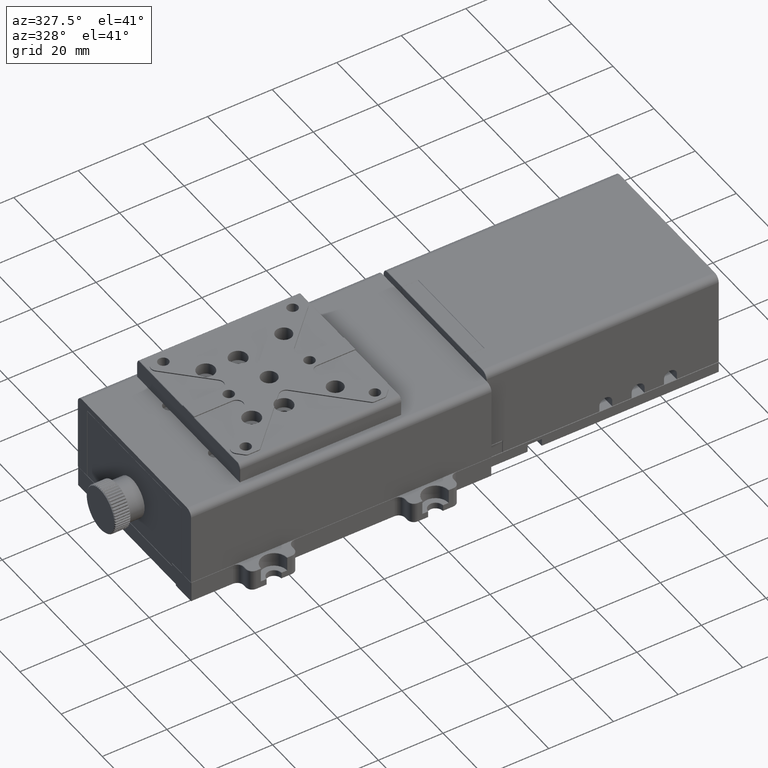
[diagram: clean part render]
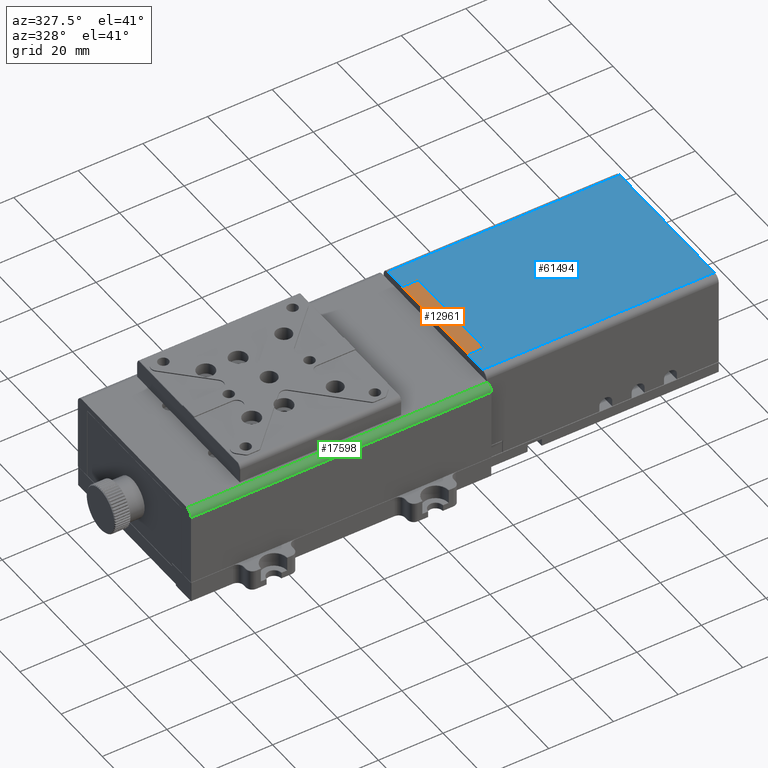
[diagram: same view with three faces highlighted in distinct colors, each labeled with its STEP entity id]
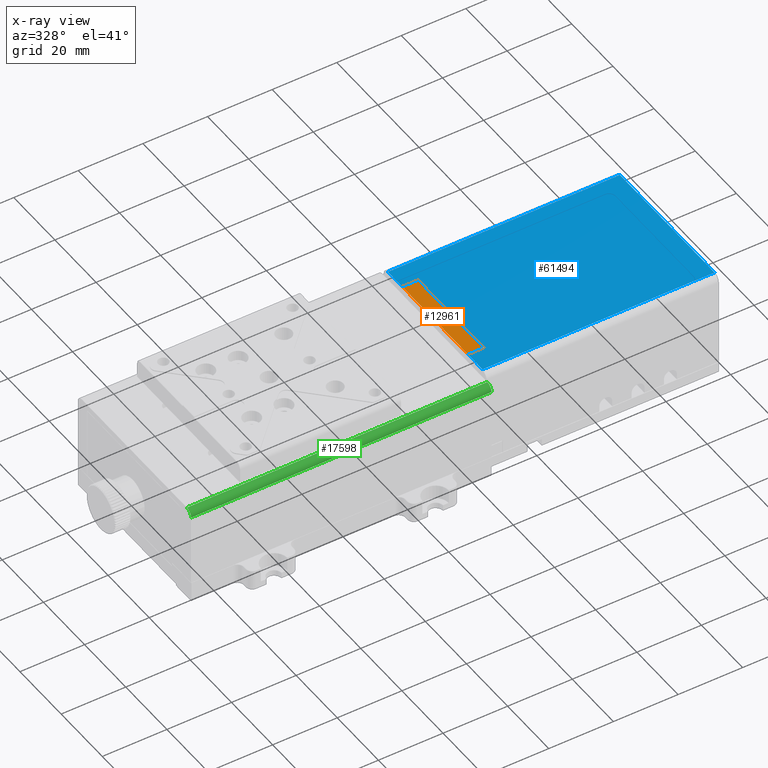
[diagram: x-ray of the same camera — body ghosted, the three highlighted faces saturated]
A machine part, auxiliary view with three faces highlighted in distinct colors.
The next image is the same camera in x-ray (body ghosted, the three faces saturated) — at least one of them is partly hidden behind the body in this view.
Their STEP definitions:

[orange] entity #12961 — the highlighted planar face has unit normal (-0, 0, 1).
#994 = ORIENTED_EDGE ( 'NONE', *, *, #19464, .T. ) ;
#7505 = VERTEX_POINT ( 'NONE', #33692 ) ;
#10291 = CARTESIAN_POINT ( 'NONE',  ( 3.989887640449450323, 40.15842696629215425, 28.50000000000000000 ) ) ;
#12444 = ORIENTED_EDGE ( 'NONE', *, *, #71699, .T. ) ;
#12779 = DIRECTION ( 'NONE',  ( -1.000000000000000000, -5.473822126268819114E-48, -9.413312474910370170E-33 ) ) ;
#12961 = ADVANCED_FACE ( 'NONE', ( #64338 ), #45006, .T. ) ;
#13751 = VECTOR ( 'NONE', #36206, 1000.000000000000000 ) ;
#15356 = VERTEX_POINT ( 'NONE', #10291 ) ;
#15965 = DIRECTION ( 'NONE',  ( 0.000000000000000000, -1.000000000000000000, 2.465190328815659976E-32 ) ) ;
#16878 = VERTEX_POINT ( 'NONE', #41882 ) ;
#19464 = EDGE_CURVE ( 'NONE', #16878, #7505, #57938, .T. ) ;
#27052 = CARTESIAN_POINT ( 'NONE',  ( 3.889887640449449790, 40.15842696629215425, 28.50000000000000000 ) ) ;
#27366 = VECTOR ( 'NONE', #12779, 1000.000000000000000 ) ;
#31326 = EDGE_CURVE ( 'NONE', #15356, #65950, #73564, .T. ) ;
#32393 = DIRECTION ( 'NONE',  ( 0.000000000000000000, -1.000000000000000000, 2.465190328815659976E-32 ) ) ;
#33692 = CARTESIAN_POINT ( 'NONE',  ( 8.789887640449460804, 40.15842696629215425, 28.50000000000000000 ) ) ;
#34099 = ORIENTED_EDGE ( 'NONE', *, *, #31326, .T. ) ;
#35373 = CARTESIAN_POINT ( 'NONE',  ( 3.889887640449449790, 8.358426966292119786, 28.50000000000000000 ) ) ;
#36206 = DIRECTION ( 'NONE',  ( 1.000000000000000000, 5.473822126268819114E-48, 9.413312474910370170E-33 ) ) ;
#38667 = AXIS2_PLACEMENT_3D ( 'NONE', #51730, #77801, #32393 ) ;
#41609 = CARTESIAN_POINT ( 'NONE',  ( 3.989887640449450323, 8.258426966292120142, 28.50000000000000000 ) ) ;
#41882 = CARTESIAN_POINT ( 'NONE',  ( 8.789887640449460804, 8.358426966292119786, 28.50000000000000000 ) ) ;
#45006 = PLANE ( 'NONE',  #38667 ) ;
#48015 = LINE ( 'NONE', #35373, #13751 ) ;
#48577 = EDGE_LOOP ( 'NONE', ( #34099, #66727, #994, #12444 ) ) ;
#49047 = VECTOR ( 'NONE', #15965, 1000.000000000000000 ) ;
#51633 = DIRECTION ( 'NONE',  ( 0.000000000000000000, 1.000000000000000000, -2.465190328815659976E-32 ) ) ;
#51730 = CARTESIAN_POINT ( 'NONE',  ( 3.889887640449449790, 38.25842696629215567, 28.50000000000000000 ) ) ;
#52677 = LINE ( 'NONE', #27052, #27366 ) ;
#55807 = EDGE_CURVE ( 'NONE', #65950, #16878, #48015, .T. ) ;
#57938 = LINE ( 'NONE', #70561, #81395 ) ;
#63239 = CARTESIAN_POINT ( 'NONE',  ( 3.989887640449450323, 8.358426966292119786, 28.50000000000000000 ) ) ;
#64338 = FACE_OUTER_BOUND ( 'NONE', #48577, .T. ) ;
#65950 = VERTEX_POINT ( 'NONE', #63239 ) ;
#66727 = ORIENTED_EDGE ( 'NONE', *, *, #55807, .T. ) ;
#70561 = CARTESIAN_POINT ( 'NONE',  ( 8.789887640449460804, 38.25842696629215567, 28.50000000000000000 ) ) ;
#71699 = EDGE_CURVE ( 'NONE', #7505, #15356, #52677, .T. ) ;
#73564 = LINE ( 'NONE', #41609, #49047 ) ;
#77801 = DIRECTION ( 'NONE',  ( -9.413312474910370170E-33, 2.465190328815659976E-32, 1.000000000000000000 ) ) ;
#81395 = VECTOR ( 'NONE', #51633, 1000.000000000000000 ) ;

[blue] entity #61494 — the highlighted planar face has unit normal (0, 0, -1).
#214 = CARTESIAN_POINT ( 'NONE',  ( 8.989887640449429895, 8.158426966292129379, 28.50000000000000000 ) ) ;
#678 = VECTOR ( 'NONE', #50015, 1000.000000000000000 ) ;
#937 = ORIENTED_EDGE ( 'NONE', *, *, #21728, .T. ) ;
#943 = FACE_OUTER_BOUND ( 'NONE', #58930, .T. ) ;
#3912 = VECTOR ( 'NONE', #71323, 1000.000000000000000 ) ;
#4190 = EDGE_CURVE ( 'NONE', #53842, #35211, #37594, .T. ) ;
#4927 = AXIS2_PLACEMENT_3D ( 'NONE', #53886, #33714, #14394 ) ;
#7060 = EDGE_CURVE ( 'NONE', #35211, #82514, #78051, .T. ) ;
#8069 = VERTEX_POINT ( 'NONE', #44457 ) ;
#10343 = CARTESIAN_POINT ( 'NONE',  ( 75.78988764044939330, 1.258426966292122140, 28.50000000000000000 ) ) ;
#14394 = DIRECTION ( 'NONE',  ( 0.000000000000000000, -1.000000000000000000, 0.000000000000000000 ) ) ;
#17256 = ORIENTED_EDGE ( 'NONE', *, *, #33238, .T. ) ;
#17576 = EDGE_CURVE ( 'NONE', #66667, #53842, #64018, .T. ) ;
#18048 = VECTOR ( 'NONE', #61651, 1000.000000000000000 ) ;
#18226 = DIRECTION ( 'NONE',  ( -1.000000000000000000, 1.110223024625155924E-16, 0.000000000000000000 ) ) ;
#19744 = CARTESIAN_POINT ( 'NONE',  ( 3.889887640449429806, 1.258426966292130134, 28.50000000000000000 ) ) ;
#19923 = EDGE_CURVE ( 'NONE', #82514, #63833, #58417, .T. ) ;
#20648 = VERTEX_POINT ( 'NONE', #10343 ) ;
#21728 = EDGE_CURVE ( 'NONE', #42845, #8069, #80967, .T. ) ;
#23751 = EDGE_CURVE ( 'NONE', #8069, #20648, #70186, .T. ) ;
#24247 = DIRECTION ( 'NONE',  ( -1.000000000000000000, 1.110223024625155924E-16, 0.000000000000000000 ) ) ;
#26613 = CARTESIAN_POINT ( 'NONE',  ( 3.889887640449429806, 47.25842696629209172, 28.50000000000000000 ) ) ;
#30359 = ORIENTED_EDGE ( 'NONE', *, *, #53769, .T. ) ;
#32130 = DIRECTION ( 'NONE',  ( -1.224646799147351975E-16, -1.000000000000000000, 0.000000000000000000 ) ) ;
#33021 = ORIENTED_EDGE ( 'NONE', *, *, #7060, .T. ) ;
#33238 = EDGE_CURVE ( 'NONE', #63833, #42845, #56206, .T. ) ;
#33714 = DIRECTION ( 'NONE',  ( 0.000000000000000000, 0.000000000000000000, -1.000000000000000000 ) ) ;
#35211 = VERTEX_POINT ( 'NONE', #39879 ) ;
#36848 = CARTESIAN_POINT ( 'NONE',  ( 3.889887640449429806, 8.158426966292129379, 28.50000000000000000 ) ) ;
#37594 = LINE ( 'NONE', #38825, #62427 ) ;
#38670 = DIRECTION ( 'NONE',  ( 1.355252715606880049E-16, -1.000000000000000000, 0.000000000000000000 ) ) ;
#38825 = CARTESIAN_POINT ( 'NONE',  ( 3.989887640449430783, -0.7415730337078710876, 28.50000000000000000 ) ) ;
#39879 = CARTESIAN_POINT ( 'NONE',  ( 3.989887640449434780, 40.35842696629214998, 28.50000000000000000 ) ) ;
#40042 = PLANE ( 'NONE',  #4927 ) ;
#40840 = CARTESIAN_POINT ( 'NONE',  ( 3.989887640449434780, 8.158426966292129379, 28.50000000000000000 ) ) ;
#42845 = VERTEX_POINT ( 'NONE', #40840 ) ;
#44457 = CARTESIAN_POINT ( 'NONE',  ( 3.989887640449430783, 1.258426966292130134, 28.50000000000000000 ) ) ;
#44513 = CARTESIAN_POINT ( 'NONE',  ( 75.78988764044939330, -0.7415730337078789702, 28.50000000000000000 ) ) ;
#46078 = ORIENTED_EDGE ( 'NONE', *, *, #23751, .T. ) ;
#46294 = CARTESIAN_POINT ( 'NONE',  ( 75.78988764044939330, 47.25842696629209172, 28.50000000000000000 ) ) ;
#50003 = ORIENTED_EDGE ( 'NONE', *, *, #4190, .T. ) ;
#50015 = DIRECTION ( 'NONE',  ( 1.000000000000000000, -1.110223024625155924E-16, 0.000000000000000000 ) ) ;
#52395 = ORIENTED_EDGE ( 'NONE', *, *, #19923, .T. ) ;
#53769 = EDGE_CURVE ( 'NONE', #20648, #66667, #57552, .T. ) ;
#53842 = VERTEX_POINT ( 'NONE', #72235 ) ;
#53886 = CARTESIAN_POINT ( 'NONE',  ( 3.889887640449429806, -0.7415730337078710876, 28.50000000000000000 ) ) ;
#54526 = ORIENTED_EDGE ( 'NONE', *, *, #17576, .T. ) ;
#55221 = VECTOR ( 'NONE', #81537, 1000.000000000000000 ) ;
#56206 = LINE ( 'NONE', #36848, #64049 ) ;
#57552 = LINE ( 'NONE', #44513, #55221 ) ;
#58063 = VECTOR ( 'NONE', #38670, 1000.000000000000000 ) ;
#58417 = LINE ( 'NONE', #58848, #58063 ) ;
#58723 = CARTESIAN_POINT ( 'NONE',  ( 3.889887640449429806, 40.35842696629214998, 28.50000000000000000 ) ) ;
#58848 = CARTESIAN_POINT ( 'NONE',  ( 8.989887640449429895, -0.7415730337078710876, 28.50000000000000000 ) ) ;
#58930 = EDGE_LOOP ( 'NONE', ( #17256, #937, #46078, #30359, #54526, #50003, #33021, #52395 ) ) ;
#61494 = ADVANCED_FACE ( 'NONE', ( #943 ), #40042, .F. ) ;
#61651 = DIRECTION ( 'NONE',  ( -1.224646799147351975E-16, -1.000000000000000000, 0.000000000000000000 ) ) ;
#62427 = VECTOR ( 'NONE', #32130, 1000.000000000000000 ) ;
#63833 = VERTEX_POINT ( 'NONE', #214 ) ;
#64018 = LINE ( 'NONE', #26613, #79958 ) ;
#64049 = VECTOR ( 'NONE', #24247, 1000.000000000000000 ) ;
#66667 = VERTEX_POINT ( 'NONE', #46294 ) ;
#67953 = CARTESIAN_POINT ( 'NONE',  ( 3.989887640449430783, -0.7415730337078710876, 28.50000000000000000 ) ) ;
#70186 = LINE ( 'NONE', #19744, #678 ) ;
#71323 = DIRECTION ( 'NONE',  ( 1.000000000000000000, -1.110223024625155924E-16, 0.000000000000000000 ) ) ;
#72235 = CARTESIAN_POINT ( 'NONE',  ( 3.989887640449434780, 47.25842696629209172, 28.50000000000000000 ) ) ;
#74298 = CARTESIAN_POINT ( 'NONE',  ( 8.989887640449429895, 40.35842696629214998, 28.50000000000000000 ) ) ;
#78051 = LINE ( 'NONE', #58723, #3912 ) ;
#79958 = VECTOR ( 'NONE', #18226, 1000.000000000000000 ) ;
#80967 = LINE ( 'NONE', #67953, #18048 ) ;
#81537 = DIRECTION ( 'NONE',  ( 1.232595164407829988E-32, 1.000000000000000000, 0.000000000000000000 ) ) ;
#82514 = VERTEX_POINT ( 'NONE', #74298 ) ;

[green] entity #17598 — the highlighted cylindrical surface (edge-blend (fillet) strip) has radius 2 mm, axis along (-1, 0, 0).
#2482 = EDGE_CURVE ( 'NONE', #17372, #79344, #32355, .T. ) ;
#3089 = CARTESIAN_POINT ( 'NONE',  ( -89.11011235955059817, -3.241573033707859874, 24.00000000000000000 ) ) ;
#6214 = CARTESIAN_POINT ( 'NONE',  ( -89.11011235955059817, -3.241573033707859874, 24.00000000000000000 ) ) ;
#6493 = CIRCLE ( 'NONE', #28011, 2.000000000000001776 ) ;
#8221 = DIRECTION ( 'NONE',  ( 1.000000000000000000, 0.000000000000000000, 0.000000000000000000 ) ) ;
#11937 = VERTEX_POINT ( 'NONE', #30350 ) ;
#13778 = VECTOR ( 'NONE', #63374, 1000.000000000000000 ) ;
#16610 = CARTESIAN_POINT ( 'NONE',  ( -89.11011235955059817, -1.241573033707860096, 26.00000000000000000 ) ) ;
#17372 = VERTEX_POINT ( 'NONE', #3089 ) ;
#17598 = ADVANCED_FACE ( 'NONE', ( #77046 ), #19461, .T. ) ;
#19461 = CYLINDRICAL_SURFACE ( 'NONE', #35662, 2.000000000000001776 ) ;
#20203 = EDGE_CURVE ( 'NONE', #28779, #17372, #62980, .T. ) ;
#20426 = CARTESIAN_POINT ( 'NONE',  ( 3.889887640449449790, -1.241573033707860096, 24.00000000000000000 ) ) ;
#25374 = DIRECTION ( 'NONE',  ( -1.000000000000000000, 0.000000000000000000, 0.000000000000000000 ) ) ;
#28011 = AXIS2_PLACEMENT_3D ( 'NONE', #20426, #8221, #52785 ) ;
#28779 = VERTEX_POINT ( 'NONE', #44983 ) ;
#28899 = CARTESIAN_POINT ( 'NONE',  ( -89.11011235955059817, -1.241573033707860096, 24.00000000000000000 ) ) ;
#29653 = DIRECTION ( 'NONE',  ( 1.000000000000000000, 0.000000000000000000, 0.000000000000000000 ) ) ;
#30350 = CARTESIAN_POINT ( 'NONE',  ( 3.889887640449449790, -1.241573033707860096, 26.00000000000000000 ) ) ;
#32355 = CIRCLE ( 'NONE', #68591, 2.000000000000000000 ) ;
#34417 = EDGE_CURVE ( 'NONE', #11937, #28779, #6493, .T. ) ;
#35662 = AXIS2_PLACEMENT_3D ( 'NONE', #52248, #25374, #45109 ) ;
#36791 = EDGE_CURVE ( 'NONE', #79344, #11937, #61181, .T. ) ;
#40490 = ORIENTED_EDGE ( 'NONE', *, *, #2482, .F. ) ;
#41134 = ORIENTED_EDGE ( 'NONE', *, *, #20203, .F. ) ;
#44983 = CARTESIAN_POINT ( 'NONE',  ( 3.889887640449449790, -3.241573033707859874, 24.00000000000000000 ) ) ;
#45109 = DIRECTION ( 'NONE',  ( 0.000000000000000000, 0.000000000000000000, 1.000000000000000000 ) ) ;
#46234 = EDGE_LOOP ( 'NONE', ( #54297, #54218, #40490, #41134 ) ) ;
#52248 = CARTESIAN_POINT ( 'NONE',  ( -89.11011235955059817, -1.241573033707860096, 24.00000000000000000 ) ) ;
#52785 = DIRECTION ( 'NONE',  ( 0.000000000000000000, 0.000000000000000000, 1.000000000000000000 ) ) ;
#54218 = ORIENTED_EDGE ( 'NONE', *, *, #36791, .F. ) ;
#54297 = ORIENTED_EDGE ( 'NONE', *, *, #34417, .F. ) ;
#54543 = DIRECTION ( 'NONE',  ( -1.000000000000000000, 0.000000000000000000, 0.000000000000000000 ) ) ;
#61181 = LINE ( 'NONE', #16610, #66181 ) ;
#62980 = LINE ( 'NONE', #6214, #13778 ) ;
#63374 = DIRECTION ( 'NONE',  ( -1.000000000000000000, 0.000000000000000000, 0.000000000000000000 ) ) ;
#66181 = VECTOR ( 'NONE', #29653, 1000.000000000000000 ) ;
#67404 = CARTESIAN_POINT ( 'NONE',  ( -89.11011235955059817, -1.241573033707860096, 26.00000000000000000 ) ) ;
#68591 = AXIS2_PLACEMENT_3D ( 'NONE', #28899, #54543, #80187 ) ;
#77046 = FACE_OUTER_BOUND ( 'NONE', #46234, .T. ) ;
#79344 = VERTEX_POINT ( 'NONE', #67404 ) ;
#80187 = DIRECTION ( 'NONE',  ( 0.000000000000000000, 1.000000000000000000, 0.000000000000000000 ) ) ;